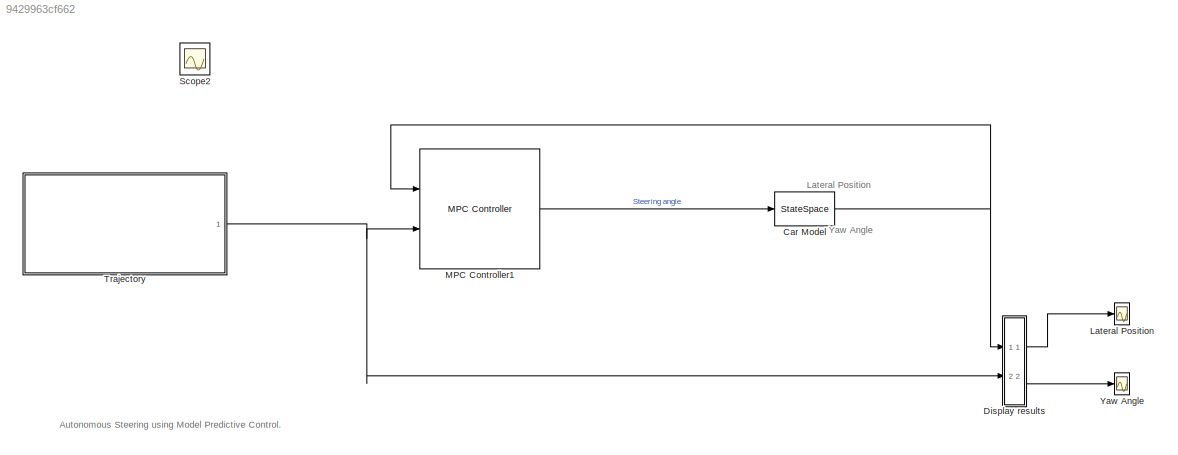
MODEL slx_9429963cf662
KIND model
CONFIG AbsTol = auto
CONFIG EnableMultiTasking = off
CONFIG FixedStep = auto
CONFIG MaxStep = auto
CONFIG MinStep = auto
CONFIG RelTol = 1e-3
CONFIG SampleTimeConstraint = Unconstrained
CONFIG SolverName = VariableStepAuto
CONFIG StartTime = 0.0
CONFIG StopTime = 15
BLOCK [StateSpace] Car Model
  A = [-(2*Cf+2*Cr)/(m*Vx), -Vx-(2*Cf*lf-2*Cr*lr)/m/Vx;  -(2*Cf*lf-2*Cr*lr)/Iz/Vx, -(2*Cf*lf^2+2*Cr*lr^2)/(Iz*Vx)]
  B = [2*Cf/m ; 2*Cf*lf/Iz]
  C = [1,0;0,1]
  D = [0;0]
  InitialCondition = 0
  Ports = [1, 1]
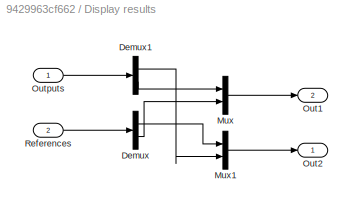
BLOCK [SubSystem] Display results
  Ports = [2, 2]
  RequestExecContextInheritance = off
  ShowPortLabels = none
BLOCK [Demux] Display results/Demux
  Outputs = 2
  Ports = [1, 2]
BLOCK [Demux] Display results/Demux1
  Outputs = 2
  Ports = [1, 2]
BLOCK [Mux] Display results/Mux
  DisplayOption = bar
  Inputs = 2
  Ports = [2, 1]
BLOCK [Mux] Display results/Mux1
  DisplayOption = bar
  Inputs = 2
  Ports = [2, 1]
BLOCK [Outport] Display results/Out1
  Port = 2
  VectorParamsAs1DForOutWhenUnconnected = off
BLOCK [Outport] Display results/Out2
  VectorParamsAs1DForOutWhenUnconnected = off
BLOCK [Inport] Display results/Outputs
BLOCK [Inport] Display results/References
  Port = 2
BLOCK [Scope] Lateral Position
  Floating = off
  NumInputPorts = 1
  Ports = [1]
  ScopeSpecificationString = Simulink.scopes.TimeScopeBlockCfg('CurrentConfiguration', extmgr.ConfigurationSet(extmgr.Configuration('Core','General UI',true),extmgr.Configuration('Core','Source UI',true),extmgr.Configuration('Sources','WiredSimulink',true,'DataLoggingVariableName','ScopeData2'),extmgr.Configuration('Visuals','Time Domain',true,'SerializedDisplays',{struct('MinYLimReal','-2174.49374','MaxYLimReal','254.67428',...<+1446ch>
BLOCK [Reference] MPC Controller1  REF=mpclib/MPC Controller  (lib defined in mdl_ae329e0e0455)
  Ports = [2, 1]
  SCDEnableBlockLinearizationSpecification = on
  SourceBlock = mpclib/MPC Controller
  SourceProductBaseCode = MP
  SourceType = MPC
BLOCK [Scope] Scope2
  Floating = off
  IOType = viewer
  NumInputPorts = 1
  Ports = []
  ScopeSpecificationString = Simulink.scopes.TimeScopeBlockCfg('CurrentConfiguration', extmgr.ConfigurationSet(extmgr.Configuration('Core','General UI',true),extmgr.Configuration('Core','Source UI',true),extmgr.Configuration('Sources','WiredSimulink',true,'DataLoggingVariableName','ScopeData4'),extmgr.Configuration('Visuals','Time Domain',true,'SerializedDisplays',{struct('MinYLimReal','-0.59331','MaxYLimReal','4.55906','YLab...<+2703ch>
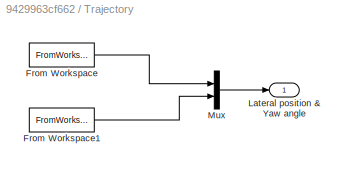
BLOCK [SubSystem] Trajectory
  Ports = [0, 1]
  RequestExecContextInheritance = off
  TreatAsAtomicUnit = on
BLOCK [FromWorkspace] Trajectory/From Workspace
  SampleTime = 0.1
  VariableName = [t', posRef(:,2)]
BLOCK [FromWorkspace] Trajectory/From Workspace1
  SampleTime = 0.1
  VariableName = [t', deg2rad(yawRef)']
BLOCK [Outport] Trajectory/Lateral position & Yaw angle
  VectorParamsAs1DForOutWhenUnconnected = off
BLOCK [Mux] Trajectory/Mux
  DisplayOption = bar
  Inputs = 2
  Ports = [2, 1]
BLOCK [Scope] Yaw Angle
  Floating = off
  NumInputPorts = 1
  Ports = [1]
  ScopeSpecificationString = Simulink.scopes.TimeScopeBlockCfg('CurrentConfiguration', extmgr.ConfigurationSet(extmgr.Configuration('Core','General UI',true),extmgr.Configuration('Core','Source UI',true),extmgr.Configuration('Sources','WiredSimulink',true,'DataLoggingVariableName','ScopeData1'),extmgr.Configuration('Visuals','Time Domain',true,'SerializedDisplays',{struct('MinYLimReal','-2225.45139','MaxYLimReal','3227.0744',...<+1418ch>
ANNOTATION (root): Autonomous Steering using Model Predictive Control.
ANNOTATION (root): Lateral Position
ANNOTATION (root): Yaw Angle
NET Car Model:1 -> Display results:1, MPC Controller1:1
LINE Display results/Demux1:1 -> Display results/Mux1:2
LINE Display results/Demux1:2 -> Display results/Mux:1
LINE Display results/Demux:1 -> Display results/Mux1:1
LINE Display results/Demux:2 -> Display results/Mux:2
LINE Display results/Mux1:1 -> Display results/Out2:1
LINE Display results/Mux:1 -> Display results/Out1:1
LINE Display results/Outputs:1 -> Display results/Demux1:1
LINE Display results/References:1 -> Display results/Demux:1
LINE Display results:1 -> Lateral Position:1
LINE Display results:2 -> Yaw Angle:1
LINE MPC Controller1:1 -> Car Model:1
LINE Trajectory/From Workspace1:1 -> Trajectory/Mux:2
LINE Trajectory/From Workspace:1 -> Trajectory/Mux:1
LINE Trajectory/Mux:1 -> Trajectory/Lateral position & Yaw angle:1
NET Trajectory:1 -> Display results:2, MPC Controller1:2
note: NET lines group one-source signal fan-out (src -> all destinations, sorted); 1:1 wires keep LINE
